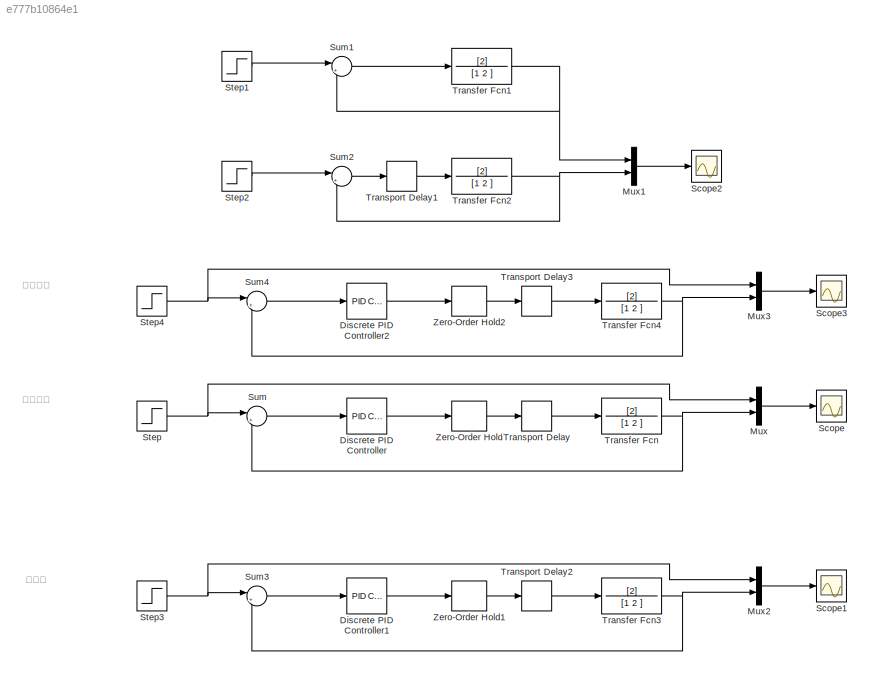
MODEL slx_e777b10864e1
KIND model
CONFIG AbsTol = auto
CONFIG FixedStep = auto
CONFIG MaxStep = auto
CONFIG MinStep = auto
CONFIG RelTol = 1e-3
CONFIG SampleTimeConstraint = Unconstrained
CONFIG Solver = VariableStepAuto
CONFIG SolverMode = Auto
CONFIG SolverName = VariableStepAuto
CONFIG StartTime = 0.0
CONFIG StopTime = 50
BLOCK [Reference] Discrete PID Controller  REF=simulink/Continuous/PID Controller
  Ports = [1, 1]
  SourceBlock = simulink/Continuous/PID Controller
  SourceType = PID 1dof
BLOCK [Reference] Discrete PID Controller1  REF=simulink/Continuous/PID Controller
  Ports = [1, 1]
  SourceBlock = simulink/Continuous/PID Controller
  SourceType = PID 1dof
BLOCK [Reference] Discrete PID Controller2  REF=simulink/Continuous/PID Controller
  Ports = [1, 1]
  SourceBlock = simulink/Continuous/PID Controller
  SourceType = PID 1dof
BLOCK [Mux] Mux
  DisplayOption = bar
  Inputs = 2
  Ports = [2, 1]
BLOCK [Mux] Mux1
  DisplayOption = bar
  Inputs = 2
  Ports = [2, 1]
BLOCK [Mux] Mux2
  DisplayOption = bar
  Inputs = 2
  Ports = [2, 1]
BLOCK [Mux] Mux3
  DisplayOption = bar
  Inputs = 2
  Ports = [2, 1]
BLOCK [Scope] Scope
  Ports = [1]
  ScopeSpecificationString = Simulink.scopes.TimeScopeBlockCfg('CurrentConfiguration', extmgr.ConfigurationSet(extmgr.Configuration('Core','General UI',true),extmgr.Configuration('Core','Source UI',true),extmgr.Configuration('Sources','WiredSimulink',true),extmgr.Configuration('Visuals','Time Domain',true,'SerializedDisplays',{struct('MinYLimReal','-0.28965','MaxYLimReal','1.5015','YLabelReal','','MinYLimMag','0.00000','MaxYL...<+1721ch>
BLOCK [Scope] Scope1
  Ports = [1]
  ScopeSpecificationString = Simulink.scopes.TimeScopeBlockCfg('CurrentConfiguration', extmgr.ConfigurationSet(extmgr.Configuration('Core','General UI',true),extmgr.Configuration('Core','Source UI',true),extmgr.Configuration('Sources','WiredSimulink',true,'DataLoggingVariableName','ScopeData1'),extmgr.Configuration('Visuals','Time Domain',true,'SerializedDisplays',{struct('MinYLimReal','-86961943076680285000000000000000000000...<+2124ch>
BLOCK [Scope] Scope2
  Ports = [1]
  ScopeSpecificationString = Simulink.scopes.TimeScopeBlockCfg('CurrentConfiguration', extmgr.ConfigurationSet(extmgr.Configuration('Core','General UI',true),extmgr.Configuration('Core','Source UI',true),extmgr.Configuration('Sources','WiredSimulink',true,'DataLoggingVariableName','ScopeData2'),extmgr.Configuration('Visuals','Time Domain',true,'SerializedDisplays',{struct('MinYLimReal','-0.26681','MaxYLimReal','1.4822','YLabe...<+1794ch>
BLOCK [Scope] Scope3
  Ports = [1]
  ScopeSpecificationString = Simulink.scopes.TimeScopeBlockCfg('CurrentConfiguration', extmgr.ConfigurationSet(extmgr.Configuration('Core','General UI',true),extmgr.Configuration('Core','Source UI',true),extmgr.Configuration('Sources','WiredSimulink',true,'DataLoggingVariableName','ScopeData1'),extmgr.Configuration('Visuals','Time Domain',true,'SerializedDisplays',{struct('MinYLimReal','-0.14152','MaxYLimReal','1.27367','YLab...<+1791ch>
BLOCK [Step] Step
  SampleTime = 0
  Time = 0
BLOCK [Step] Step1
  SampleTime = 0
  Time = 0
BLOCK [Step] Step2
  SampleTime = 0
  Time = 0
BLOCK [Step] Step3
  SampleTime = 0
  Time = 0
BLOCK [Step] Step4
  SampleTime = 0
  Time = 0
BLOCK [Sum] Sum
  IconShape = round
  InputSameDT = off
  Inputs = |+-
  OutDataTypeStr = Inherit: Inherit via internal rule
  Ports = [2, 1]
  SaturateOnIntegerOverflow = off
BLOCK [Sum] Sum1
  IconShape = round
  InputSameDT = off
  Inputs = |+-
  OutDataTypeStr = Inherit: Inherit via internal rule
  Ports = [2, 1]
  SaturateOnIntegerOverflow = off
BLOCK [Sum] Sum2
  IconShape = round
  InputSameDT = off
  Inputs = |+-
  OutDataTypeStr = Inherit: Inherit via internal rule
  Ports = [2, 1]
  SaturateOnIntegerOverflow = off
BLOCK [Sum] Sum3
  IconShape = round
  InputSameDT = off
  Inputs = |+-
  OutDataTypeStr = Inherit: Inherit via internal rule
  Ports = [2, 1]
  SaturateOnIntegerOverflow = off
BLOCK [Sum] Sum4
  IconShape = round
  InputSameDT = off
  Inputs = |+-
  OutDataTypeStr = Inherit: Inherit via internal rule
  Ports = [2, 1]
  SaturateOnIntegerOverflow = off
BLOCK [TransferFcn] Transfer Fcn
  Denominator = [1 2 ]
  Numerator = [2]
BLOCK [TransferFcn] Transfer Fcn1
  Denominator = [1 2 ]
  Numerator = [2]
BLOCK [TransferFcn] Transfer Fcn2
  Denominator = [1 2 ]
  Numerator = [2]
BLOCK [TransferFcn] Transfer Fcn3
  Denominator = [1 2 ]
  Numerator = [2]
BLOCK [TransferFcn] Transfer Fcn4
  Denominator = [1 2 ]
  Numerator = [2]
BLOCK [TransportDelay] Transport Delay
  Ports = [1, 1]
BLOCK [TransportDelay] Transport Delay1
  Ports = [1, 1]
BLOCK [TransportDelay] Transport Delay2
  Ports = [1, 1]
BLOCK [TransportDelay] Transport Delay3
  Ports = [1, 1]
BLOCK [ZeroOrderHold] Zero-Order Hold
  SampleTime = 0.01
BLOCK [ZeroOrderHold] Zero-Order Hold1
  SampleTime = T
BLOCK [ZeroOrderHold] Zero-Order Hold2
  SampleTime = 0.01
ANNOTATION (root): 等幅震荡
ANNOTATION (root): 自动调整
ANNOTATION (root): 整定后
LINE Discrete PID Controller1:1 -> Zero-Order Hold1:1
LINE Discrete PID Controller2:1 -> Zero-Order Hold2:1
LINE Discrete PID Controller:1 -> Zero-Order Hold:1
LINE Mux1:1 -> Scope2:1
LINE Mux2:1 -> Scope1:1
LINE Mux3:1 -> Scope3:1
LINE Mux:1 -> Scope:1
LINE Step1:1 -> Sum1:1
LINE Step2:1 -> Sum2:1
NET Step3:1 -> Mux2:1, Sum3:1
NET Step4:1 -> Mux3:1, Sum4:1
NET Step:1 -> Mux:1, Sum:1
LINE Sum1:1 -> Transfer Fcn1:1
LINE Sum2:1 -> Transport Delay1:1
LINE Sum3:1 -> Discrete PID Controller1:1
LINE Sum4:1 -> Discrete PID Controller2:1
LINE Sum:1 -> Discrete PID Controller:1
NET Transfer Fcn1:1 -> Mux1:1, Sum1:2
NET Transfer Fcn2:1 -> Mux1:2, Sum2:2
NET Transfer Fcn3:1 -> Mux2:2, Sum3:2
NET Transfer Fcn4:1 -> Mux3:2, Sum4:2
NET Transfer Fcn:1 -> Mux:2, Sum:2
LINE Transport Delay1:1 -> Transfer Fcn2:1
LINE Transport Delay2:1 -> Transfer Fcn3:1
LINE Transport Delay3:1 -> Transfer Fcn4:1
LINE Transport Delay:1 -> Transfer Fcn:1
LINE Zero-Order Hold1:1 -> Transport Delay2:1
LINE Zero-Order Hold2:1 -> Transport Delay3:1
LINE Zero-Order Hold:1 -> Transport Delay:1
note: NET lines group one-source signal fan-out (src -> all destinations, sorted); 1:1 wires keep LINE
